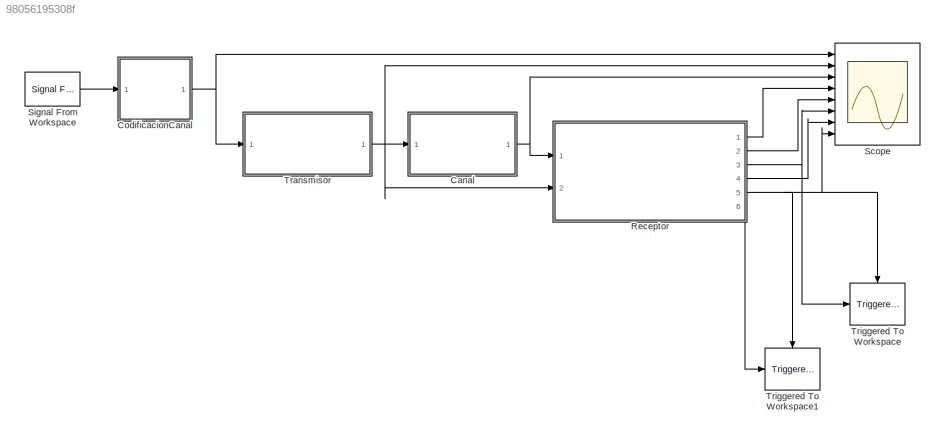
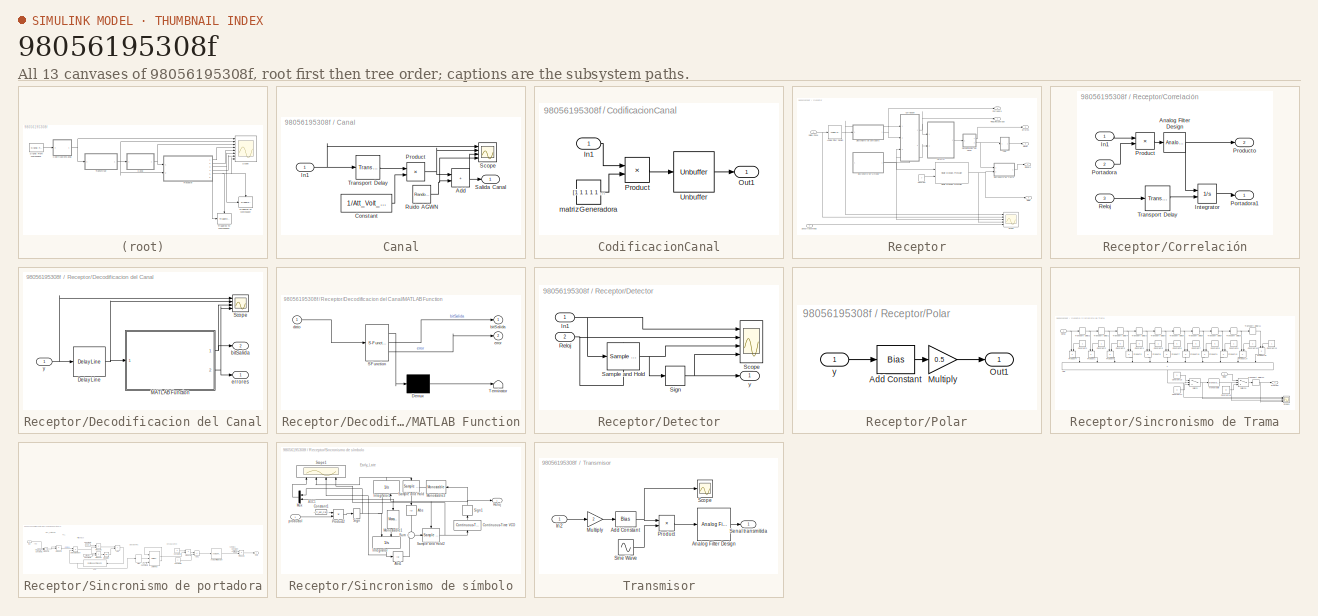
[diagram: thumbnail index - all 13 canvases of the model, root first then tree order]
MODEL slx_98056195308f
KIND model
CONFIG AbsTol = auto
CONFIG EnableMultiTasking = off
CONFIG FixedStep = auto
CONFIG MaxStep = 3.3333333333333335E-7
CONFIG MinStep = auto
CONFIG RelTol = 1e-3
CONFIG SampleTimeConstraint = Unconstrained
CONFIG SolverName = ode45
CONFIG StartTime = 0.0
CONFIG StopTime = 500*Tb
BLOCK [SubSystem] Canal
  Ports = [1, 1]
  RequestExecContextInheritance = off
BLOCK [Sum] Canal/Add
  IconShape = rectangular
  Ports = [2, 1]
BLOCK [Constant] Canal/Constant
  Value = 1/Att_Volt_Canal
BLOCK [Inport] Canal/In1
BLOCK [Product] Canal/Product
  Ports = [2, 1]
BLOCK [RandomNumber] Canal/Ruido AGWN
  SampleTime = 1/(2*AnchoDeBandaRuido)
  Variance = 0.9*varRuido
  VectorParams1D = off
BLOCK [Outport] Canal/Salida Canal
BLOCK [Scope] Canal/Scope
  Floating = off
  NumInputPorts = 4
  Ports = [4]
  ScopeSpecificationString = Simulink.scopes.TimeScopeBlockCfg('CurrentConfiguration', extmgr.ConfigurationSet(extmgr.Configuration('Core','General UI',true,'FigureColor',[1 1 1]),extmgr.Configuration('Core','Source UI',true),extmgr.Configuration('Sources','WiredSimulink',true,'DataLoggingVariableName','ScopeData2'),extmgr.Configuration('Visuals','Time Domain',true,'SerializedDisplays',{struct('MinYLimReal','-0.000000014','Ma...<+4249ch>
BLOCK [TransportDelay] Canal/Transport Delay
  DelayTime = Retraso_Canal
  Ports = [1, 1]
BLOCK [SubSystem] CodificacionCanal
  Ports = [1, 1]
  RequestExecContextInheritance = off
BLOCK [Inport] CodificacionCanal/In1
BLOCK [Outport] CodificacionCanal/Out1
BLOCK [Product] CodificacionCanal/Product
  Ports = [2, 1]
BLOCK [Unbuffer] CodificacionCanal/Unbuffer
  Ports = [1, 1]
BLOCK [Constant] CodificacionCanal/matrizGeneradora
  Value = [1 1 1 1 1 1 1]
BLOCK [SubSystem] Receptor
  Ports = [2, 6]
  RequestExecContextInheritance = off
BLOCK [Reference] Receptor/Analog Filter Design  REF=dsparch4/Analog
Filter Design
  Ports = [1, 1]
  SourceBlock = dsparch4/Analog\nFilter Design
  SourceProductBaseCode = DS
  SourceType = Analog Filter Design
BLOCK [Constant] Receptor/Constant
  Value = 7
BLOCK [SubSystem] Receptor/Correlación
  NameLocation = top
  PortSchema = {"entries":[{"content":{"sides":[{"content":{"connectorIds":["In1","In2","Out2","In3"]},"type":"ConnectorPlacement.EquallySpacedRectSide","uuid":"9c9ed9ca-e8ca-44c2-a659-85a067b2e2ab"},{"content":{"connectorIds":["Out1"],"side":"RIGHT"},"type":"ConnectorPlacement.EquallySpacedRectSide","uuid":"749548a8-d339-4a18-8c47-3529cad88115"},{"content":{"connectorIds":[],"side":"TOP"},"type":"ConnectorPlace...<+403ch>
  Ports = [3, 2]
  RequestExecContextInheritance = off
BLOCK [Reference] Receptor/Correlación/Analog Filter Design  REF=dsparch4/Analog
Filter Design
  Ports = [1, 1]
  SourceBlock = dsparch4/Analog\nFilter Design
  SourceProductBaseCode = DS
  SourceType = Analog Filter Design
BLOCK [Inport] Receptor/Correlación/In1
BLOCK [Integrator] Receptor/Correlación/Integrator
  ExternalReset = rising
  Ports = [2, 1]
BLOCK [Inport] Receptor/Correlación/Portadora
  Port = 2
BLOCK [Outport] Receptor/Correlación/Portadora1
BLOCK [Product] Receptor/Correlación/Product
  Ports = [2, 1]
BLOCK [Outport] Receptor/Correlación/Producto
  Port = 2
BLOCK [Inport] Receptor/Correlación/Reloj
  Port = 3
BLOCK [TransportDelay] Receptor/Correlación/Transport Delay
  DelayTime = 1e-9
  Ports = [1, 1]
BLOCK [SubSystem] Receptor/Decodificacion del Canal
  Ports = [1, 2]
  RequestExecContextInheritance = off
BLOCK [Reference] Receptor/Decodificacion del Canal/Delay Line  REF=dspbuff3/Delay Line
  Ports = [1, 1]
  SourceBlock = dspbuff3/Delay Line
  SourceProductBaseCode = DS
  SourceType = Delay Line
  UserDataPersistent = on
BLOCK [SubSystem] Receptor/Decodificacion del Canal/MATLAB Function
  ErrorFcn = Stateflow.Translate.translate
  PermitHierarchicalResolution = ExplicitOnly
  Ports = [1, 2]
  RequestExecContextInheritance = off
  SFBlockType = MATLAB Function
  TreatAsAtomicUnit = on
BLOCK [Demux] Receptor/Decodificacion del Canal/MATLAB Function/ Demux 
  Outputs = 1
  Ports = [1, 1]
BLOCK [S-Function] Receptor/Decodificacion del Canal/MATLAB Function/ SFunction 
  EnableBusSupport = on
  FunctionName = sf_sfun
  PortCounts = [1 3]
  Ports = [1, 3]
  SFcnIsStateOwnerBlock = off
  SFunctionDeploymentMode = off
  Tag = Stateflow S-Function 2
BLOCK [Terminator] Receptor/Decodificacion del Canal/MATLAB Function/ Terminator 
BLOCK [Outport] Receptor/Decodificacion del Canal/MATLAB Function/bitSalida
BLOCK [Inport] Receptor/Decodificacion del Canal/MATLAB Function/dato
BLOCK [Outport] Receptor/Decodificacion del Canal/MATLAB Function/error
  Port = 2
BLOCK [Scope] Receptor/Decodificacion del Canal/Scope
  Floating = off
  NumInputPorts = 4
  Ports = [4]
  ScopeSpecificationString = Simulink.scopes.TimeScopeBlockCfg('CurrentConfiguration', extmgr.ConfigurationSet(extmgr.Configuration('Core','General UI',true,'FigureColor',[1 1 1]),extmgr.Configuration('Core','Source UI',true),extmgr.Configuration('Sources','WiredSimulink',true,'DataLoggingVariableName','ScopeData1'),extmgr.Configuration('Visuals','Time Domain',true,'SerializedDisplays',{struct('MinYLimReal','-1.25','MaxYLimRe...<+5450ch>
BLOCK [Outport] Receptor/Decodificacion del Canal/bitSalida
  Port = 2
BLOCK [Outport] Receptor/Decodificacion del Canal/errores
BLOCK [Inport] Receptor/Decodificacion del Canal/y
BLOCK [SubSystem] Receptor/Detector
  Ports = [2, 1]
  RequestExecContextInheritance = off
BLOCK [Inport] Receptor/Detector/In1
BLOCK [Inport] Receptor/Detector/Reloj
  Port = 2
BLOCK [Reference] Receptor/Detector/Sample and Hold  REF=dspsigops/Sample
and Hold
  NameLocation = top
  Ports = [1, 1, 0, 1]
  SourceBlock = dspsigops/Sample\nand Hold
  SourceProductBaseCode = DS
  SourceType = Sample and Hold
BLOCK [Scope] Receptor/Detector/Scope
  Floating = off
  NumInputPorts = 4
  Ports = [4]
  ScopeSpecificationString = Simulink.scopes.TimeScopeBlockCfg('CurrentConfiguration', extmgr.ConfigurationSet(extmgr.Configuration('Core','General UI',true,'FigureColor',[0.831372549019608 0.815686274509804 0.784313725490196]),extmgr.Configuration('Core','Source UI',true),extmgr.Configuration('Sources','WiredSimulink',true,'DataLoggingVariableName','ScopeData5'),extmgr.Configuration('Visuals','Time Domain',true,'SerializedDi...<+4211ch>
BLOCK [Signum] Receptor/Detector/Sign
BLOCK [Outport] Receptor/Detector/y
BLOCK [Outport] Receptor/Disparo
  Port = 4
BLOCK [Outport] Receptor/Errores
  Port = 6
BLOCK [SubSystem] Receptor/Polar
  Ports = [1, 1]
  RequestExecContextInheritance = off
BLOCK [Bias] Receptor/Polar/Add Constant
  Bias = 1
  SaturateOnIntegerOverflow = off
BLOCK [Gain] Receptor/Polar/Multiply
  Gain = 0.5
BLOCK [Outport] Receptor/Polar/Out1
BLOCK [Inport] Receptor/Polar/y
BLOCK [Outport] Receptor/Portadora
BLOCK [Outport] Receptor/Reloj
  Port = 5
BLOCK [Outport] Receptor/Reloj_Recuperado
  Port = 2
BLOCK [Inport] Receptor/Salida Canal
BLOCK [Scope] Receptor/Scope
  Floating = off
  NumInputPorts = 5
  Ports = [5]
  ScopeSpecificationString = Simulink.scopes.TimeScopeBlockCfg('CurrentConfiguration', extmgr.ConfigurationSet(extmgr.Configuration('Core','General UI',true,'FigureColor',[1 1 1]),extmgr.Configuration('Core','Source UI',true),extmgr.Configuration('Sources','WiredSimulink',true,'DataLoggingVariableName','ScopeData1'),extmgr.Configuration('Visuals','Time Domain',true,'SerializedDisplays',{struct('MinYLimReal','-0.00000000003','...<+7648ch>
BLOCK [Inport] Receptor/Senal transmitida
  Port = 2
BLOCK [Outport] Receptor/Señal
  Port = 3
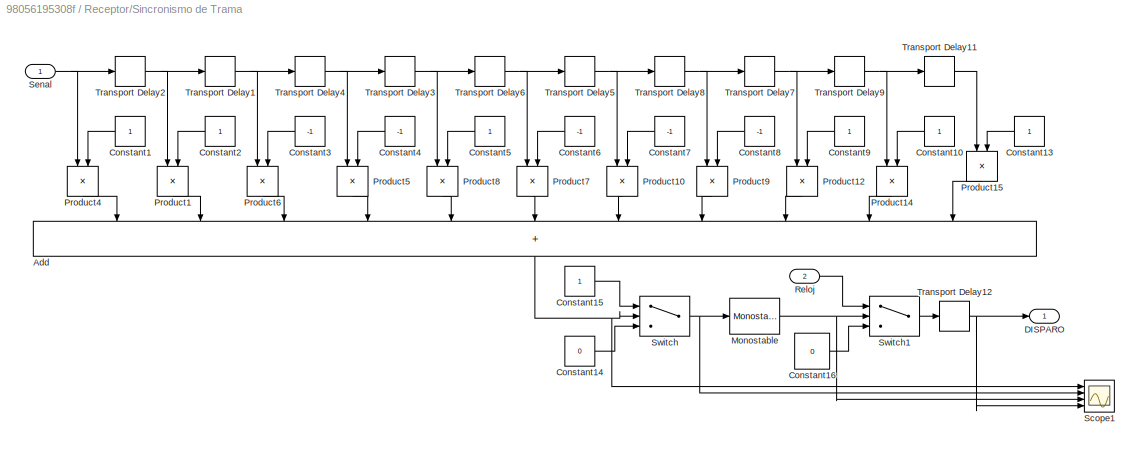
BLOCK [SubSystem] Receptor/Sincronismo de Trama
  Ports = [2, 1]
  RequestExecContextInheritance = off
BLOCK [Sum] Receptor/Sincronismo de Trama/Add
  IconShape = rectangular
  Inputs = +++++++++++
  NameLocation = left
  Ports = [11, 1]
BLOCK [Constant] Receptor/Sincronismo de Trama/Constant1
BLOCK [Constant] Receptor/Sincronismo de Trama/Constant10
BLOCK [Constant] Receptor/Sincronismo de Trama/Constant13
BLOCK [Constant] Receptor/Sincronismo de Trama/Constant14
  Value = 0
BLOCK [Constant] Receptor/Sincronismo de Trama/Constant15
BLOCK [Constant] Receptor/Sincronismo de Trama/Constant16
  Value = 0
BLOCK [Constant] Receptor/Sincronismo de Trama/Constant2
BLOCK [Constant] Receptor/Sincronismo de Trama/Constant3
  Value = -1
BLOCK [Constant] Receptor/Sincronismo de Trama/Constant4
  Value = -1
BLOCK [Constant] Receptor/Sincronismo de Trama/Constant5
BLOCK [Constant] Receptor/Sincronismo de Trama/Constant6
  Value = -1
BLOCK [Constant] Receptor/Sincronismo de Trama/Constant7
  Value = -1
BLOCK [Constant] Receptor/Sincronismo de Trama/Constant8
  Value = -1
BLOCK [Constant] Receptor/Sincronismo de Trama/Constant9
BLOCK [Outport] Receptor/Sincronismo de Trama/DISPARO 
  VectorParamsAs1DForOutWhenUnconnected = off
BLOCK [Reference] Receptor/Sincronismo de Trama/Monostable  REF=spsMonostableLib/Monostable
  Ports = [1, 1]
  SourceBlock = spsMonostableLib/Monostable
  SourceProductBaseCode = PS
  SourceType = Monostable
BLOCK [Product] Receptor/Sincronismo de Trama/Product1
  NameLocation = left
  Ports = [2, 1]
BLOCK [Product] Receptor/Sincronismo de Trama/Product10
  NameLocation = left
  Ports = [2, 1]
BLOCK [Product] Receptor/Sincronismo de Trama/Product12
  NameLocation = left
  Ports = [2, 1]
BLOCK [Product] Receptor/Sincronismo de Trama/Product14
  NameLocation = left
  Ports = [2, 1]
BLOCK [Product] Receptor/Sincronismo de Trama/Product15
  NameLocation = left
  Ports = [2, 1]
BLOCK [Product] Receptor/Sincronismo de Trama/Product4
  NameLocation = left
  Ports = [2, 1]
BLOCK [Product] Receptor/Sincronismo de Trama/Product5
  NameLocation = left
  Ports = [2, 1]
BLOCK [Product] Receptor/Sincronismo de Trama/Product6
  NameLocation = left
  Ports = [2, 1]
BLOCK [Product] Receptor/Sincronismo de Trama/Product7
  NameLocation = left
  Ports = [2, 1]
BLOCK [Product] Receptor/Sincronismo de Trama/Product8
  NameLocation = left
  Ports = [2, 1]
BLOCK [Product] Receptor/Sincronismo de Trama/Product9
  NameLocation = left
  Ports = [2, 1]
BLOCK [Inport] Receptor/Sincronismo de Trama/Reloj
  Port = 2
BLOCK [Scope] Receptor/Sincronismo de Trama/Scope1
  Floating = off
  NumInputPorts = 4
  Ports = [4]
  ScopeSpecificationString = Simulink.scopes.TimeScopeBlockCfg('CurrentConfiguration', extmgr.ConfigurationSet(extmgr.Configuration('Core','General UI',true),extmgr.Configuration('Core','Source UI',true),extmgr.Configuration('Sources','WiredSimulink',true,'DataLoggingVariableName','ScopeData1'),extmgr.Configuration('Visuals','Time Domain',true,'SerializedDisplays',{struct('MinYLimReal','-6.5','MaxYLimReal','8.5','YLabelReal',...<+3439ch>
BLOCK [Inport] Receptor/Sincronismo de Trama/Senal
BLOCK [Switch] Receptor/Sincronismo de Trama/Switch
  InputSameDT = off
  SaturateOnIntegerOverflow = off
  Threshold = 11
BLOCK [Switch] Receptor/Sincronismo de Trama/Switch1
  Criteria = u2 > Threshold
  InputSameDT = off
  SaturateOnIntegerOverflow = off
BLOCK [TransportDelay] Receptor/Sincronismo de Trama/Transport Delay1
  DelayTime = 7*Tb
  Ports = [1, 1]
BLOCK [TransportDelay] Receptor/Sincronismo de Trama/Transport Delay11
  DelayTime = 7*Tb
  Ports = [1, 1]
BLOCK [TransportDelay] Receptor/Sincronismo de Trama/Transport Delay12
  Commented = through
  DelayTime = Tb
  Ports = [1, 1]
BLOCK [TransportDelay] Receptor/Sincronismo de Trama/Transport Delay2
  DelayTime = 7*Tb
  Ports = [1, 1]
BLOCK [TransportDelay] Receptor/Sincronismo de Trama/Transport Delay3
  DelayTime = 7*Tb
  Ports = [1, 1]
BLOCK [TransportDelay] Receptor/Sincronismo de Trama/Transport Delay4
  DelayTime = 7*Tb
  Ports = [1, 1]
BLOCK [TransportDelay] Receptor/Sincronismo de Trama/Transport Delay5
  DelayTime = 7*Tb
  Ports = [1, 1]
BLOCK [TransportDelay] Receptor/Sincronismo de Trama/Transport Delay6
  DelayTime = 7*Tb
  Ports = [1, 1]
BLOCK [TransportDelay] Receptor/Sincronismo de Trama/Transport Delay7
  DelayTime = 7*Tb
  Ports = [1, 1]
BLOCK [TransportDelay] Receptor/Sincronismo de Trama/Transport Delay8
  DelayTime = 7*Tb
  Ports = [1, 1]
BLOCK [TransportDelay] Receptor/Sincronismo de Trama/Transport Delay9
  DelayTime = 7*Tb
  Ports = [1, 1]
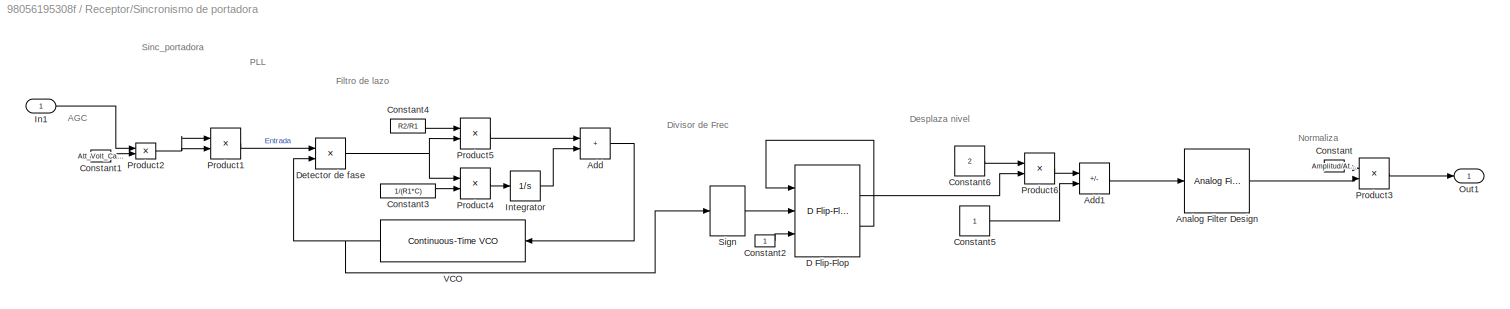
BLOCK [SubSystem] Receptor/Sincronismo de portadora
  Ports = [1, 1]
  RequestExecContextInheritance = off
BLOCK [Reference] Receptor/Sincronismo de portadora/ VCO  REF=commsynccomp2/Continuous-Time
VCO
  NameLocation = top
  Ports = [1, 1]
  SourceBlock = commsynccomp2/Continuous-Time\nVCO
  SourceProductBaseCode = CM
  SourceType = Continuous-Time VCO
BLOCK [Sum] Receptor/Sincronismo de portadora/Add
  IconShape = rectangular
  Ports = [2, 1]
BLOCK [Sum] Receptor/Sincronismo de portadora/Add1
  IconShape = rectangular
  Inputs = +-
  Ports = [2, 1]
BLOCK [Reference] Receptor/Sincronismo de portadora/Analog Filter Design  REF=dsparch4/Analog
Filter Design
  Ports = [1, 1]
  SourceBlock = dsparch4/Analog\nFilter Design
  SourceProductBaseCode = DS
  SourceType = Analog Filter Design
BLOCK [Constant] Receptor/Sincronismo de portadora/Constant
  Value = Amplitud/Att_Volt_Canal
BLOCK [Constant] Receptor/Sincronismo de portadora/Constant1
  Value = Att_Volt_Canal/Amplitud
BLOCK [Constant] Receptor/Sincronismo de portadora/Constant2
BLOCK [Constant] Receptor/Sincronismo de portadora/Constant3
  Value = 1/(R1*C)
BLOCK [Constant] Receptor/Sincronismo de portadora/Constant4
  Value = R2/R1
BLOCK [Constant] Receptor/Sincronismo de portadora/Constant5
BLOCK [Constant] Receptor/Sincronismo de portadora/Constant6
  Value = 2
BLOCK [Reference] Receptor/Sincronismo de portadora/D Flip-Flop  REF=simulink_extras/Flip Flops/D Flip-Flop
  Ports = [3, 2]
  SourceBlock = simulink_extras/Flip Flops/D Flip-Flop
  SourceProductBaseCode = SL
  SourceType = DFlipFlop
BLOCK [Product] Receptor/Sincronismo de portadora/Detector de fase
  Ports = [2, 1]
BLOCK [Inport] Receptor/Sincronismo de portadora/In1
BLOCK [Integrator] Receptor/Sincronismo de portadora/Integrator
  Ports = [1, 1]
BLOCK [Outport] Receptor/Sincronismo de portadora/Out1
BLOCK [Product] Receptor/Sincronismo de portadora/Product1
  Ports = [2, 1]
BLOCK [Product] Receptor/Sincronismo de portadora/Product2
  Ports = [2, 1]
BLOCK [Product] Receptor/Sincronismo de portadora/Product3
  Ports = [2, 1]
BLOCK [Product] Receptor/Sincronismo de portadora/Product4
  Ports = [2, 1]
BLOCK [Product] Receptor/Sincronismo de portadora/Product5
  Ports = [2, 1]
BLOCK [Product] Receptor/Sincronismo de portadora/Product6
  Ports = [2, 1]
BLOCK [Signum] Receptor/Sincronismo de portadora/Sign
BLOCK [SubSystem] Receptor/Sincronismo de símbolo
  PortSchema = {"entries":[{"content":{"sides":[{"content":{"connectorIds":[]},"type":"ConnectorPlacement.EquallySpacedRectSide","uuid":"93994b0c-b2cb-4331-9695-4cda4bbb6019"},{"content":{"connectorIds":["In1","Out1"],"side":"RIGHT"},"type":"ConnectorPlacement.EquallySpacedRectSide","uuid":"b8064540-0ede-4985-840d-1e59709fa35b"},{"content":{"connectorIds":[],"side":"TOP"},"type":"ConnectorPlacement.EquallySpaced...<+241ch>
  Ports = [1, 1]
  RequestExecContextInheritance = off
BLOCK [Abs] Receptor/Sincronismo de símbolo/Abs
  NameLocation = right
  SaturateOnIntegerOverflow = off
BLOCK [Abs] Receptor/Sincronismo de símbolo/Abs1
  SaturateOnIntegerOverflow = off
BLOCK [Constant] Receptor/Sincronismo de símbolo/Constant1
  Value = Att_pot_Canal/(Amplitud^2)
BLOCK [Reference] Receptor/Sincronismo de símbolo/Continuous-Time VCO  REF=commsynccomp2/Continuous-Time
VCO
  NameLocation = left
  Ports = [1, 1]
  SourceBlock = commsynccomp2/Continuous-Time\nVCO
  SourceProductBaseCode = CM
  SourceType = Continuous-Time VCO
BLOCK [Integrator] Receptor/Sincronismo de símbolo/Integrator
  ExternalReset = falling
  LowerSaturationLimit = -0.7e-4
  NameLocation = left
  Ports = [2, 1]
  UpperSaturationLimit = 0.7e-4
BLOCK [Integrator] Receptor/Sincronismo de símbolo/Integrator1
  ExternalReset = rising
  LowerSaturationLimit = -0.7e-4
  NameLocation = right
  Ports = [2, 1]
  UpperSaturationLimit = 0.7e-4
BLOCK [Reference] Receptor/Sincronismo de símbolo/Monostable1  REF=powerlib_extras/Control 
Blocks/Monostable
  NameLocation = left
  Ports = [1, 1]
  SourceBlock = powerlib_extras/Control \nBlocks/Monostable
  SourceProductBaseCode = PS
  SourceType = Monostable Flip-Flop
BLOCK [Reference] Receptor/Sincronismo de símbolo/Monostable3  REF=powerlib_extras/Control 
Blocks/Monostable
  Ports = [1, 1]
  SourceBlock = powerlib_extras/Control \nBlocks/Monostable
  SourceProductBaseCode = PS
  SourceType = Monostable Flip-Flop
BLOCK [Mux] Receptor/Sincronismo de símbolo/Mux
  DisplayOption = bar
  Inputs = 2
  Ports = [2, 1]
BLOCK [Product] Receptor/Sincronismo de símbolo/Product2
  Ports = [2, 1]
BLOCK [Outport] Receptor/Sincronismo de símbolo/Reloj
BLOCK [Reference] Receptor/Sincronismo de símbolo/Sample and Hold  REF=dspsigops/Sample
and Hold
  NameLocation = left
  Ports = [1, 1, 0, 1]
  SourceBlock = dspsigops/Sample\nand Hold
  SourceProductBaseCode = DS
  SourceType = Sample and Hold
BLOCK [Reference] Receptor/Sincronismo de símbolo/Sample and Hold2  REF=dspsigops/Sample
and Hold
  Ports = [1, 1, 0, 1]
  SourceBlock = dspsigops/Sample\nand Hold
  SourceProductBaseCode = DS
  SourceType = Sample and Hold
BLOCK [Scope] Receptor/Sincronismo de símbolo/Scope1
  Floating = off
  NameLocation = right
  NumInputPorts = 4
  Ports = [4]
  ScopeSpecificationString = Simulink.scopes.TimeScopeBlockCfg('CurrentConfiguration', extmgr.ConfigurationSet(extmgr.Configuration('Core','General UI',true,'FigureColor',[0.831372549019608 0.815686274509804 0.784313725490196]),extmgr.Configuration('Core','Source UI',true),extmgr.Configuration('Sources','WiredSimulink',true,'DataLoggingVariableName','ScopeData1'),extmgr.Configuration('Visuals','Time Domain',true,'SerializedDi...<+4389ch>
BLOCK [Signum] Receptor/Sincronismo de símbolo/Sign
BLOCK [Signum] Receptor/Sincronismo de símbolo/Sign1
  NameLocation = right
BLOCK [Sum] Receptor/Sincronismo de símbolo/Sum
  Inputs = +-
  Ports = [2, 1]
BLOCK [Inport] Receptor/Sincronismo de símbolo/productol
BLOCK [Reference] Receptor/Single Modulus Prescaler  REF=msbPllFoundation/Single Modulus Prescaler
  Ports = [2, 1]
  SourceBlock = msbPllFoundation/Single Modulus Prescaler
  SourceProductBaseCode = AM
  SourceType = SingleModulusPrescaler
BLOCK [Scope] Scope
  Floating = off
  NumInputPorts = 8
  Ports = [8]
  ScopeSpecificationString = Simulink.scopes.TimeScopeBlockCfg('CurrentConfiguration', extmgr.ConfigurationSet(extmgr.Configuration('Core','General UI',true,'FigureColor',[1 1 1]),extmgr.Configuration('Core','Source UI',true),extmgr.Configuration('Sources','WiredSimulink',true,'DataLoggingVariableName','ScopeData1'),extmgr.Configuration('Visuals','Time Domain',true,'SerializedDisplays',{struct('MinYLimReal','-0.125','MaxYLimR...<+7705ch>
BLOCK [Reference] Signal From Workspace  REF=dspsrcs4/Signal From
Workspace
  Ports = [0, 1]
  SourceBlock = dspsrcs4/Signal From\nWorkspace
  SourceProductBaseCode = DS
  SourceType = Signal From Workspace
BLOCK [SubSystem] Transmisor
  Ports = [1, 1]
  RequestExecContextInheritance = off
BLOCK [Bias] Transmisor/Add Constant
  Bias = -1
  SaturateOnIntegerOverflow = off
BLOCK [Reference] Transmisor/Analog Filter Design  REF=dsparch4/Analog
Filter Design
  Ports = [1, 1]
  SourceBlock = dsparch4/Analog\nFilter Design
  SourceProductBaseCode = DS
  SourceType = Analog Filter Design
BLOCK [Inport] Transmisor/In2
BLOCK [Gain] Transmisor/Multiply
  Gain = 2
BLOCK [Product] Transmisor/Product
  Ports = [2, 1]
BLOCK [Scope] Transmisor/Scope
  Floating = off
  NumInputPorts = 1
  Ports = [1]
  ScopeSpecificationString = Simulink.scopes.TimeScopeBlockCfg('CurrentConfiguration', extmgr.ConfigurationSet(extmgr.Configuration('Core','General UI',true),extmgr.Configuration('Core','Source UI',true),extmgr.Configuration('Sources','WiredSimulink',true),extmgr.Configuration('Visuals','Time Domain',true,'SerializedDisplays',{struct('MinYLimReal','-1.08253','MaxYLimReal','1.08253','YLabelReal','','MinYLimMag','0.00000','MaxY...<+2080ch>
BLOCK [Outport] Transmisor/Senal transmitida
BLOCK [Sin] Transmisor/Sine Wave
  Amplitude = AmplitudPortadora
  Frequency = 2*pi*Frec_port
  Ports = [0, 1]
  SampleTime = 0
  Samples = 5
BLOCK [Reference] Triggered To Workspace  REF=dspsnks4/Triggered
To Workspace
  Ports = [1, 0, 0, 1]
  SourceBlock = dspsnks4/Triggered\nTo Workspace
  SourceProductBaseCode = DS
  SourceType = Triggered To Workspace
  UserDataPersistent = on
BLOCK [Reference] Triggered To Workspace1  REF=dspsnks4/Triggered
To Workspace
  Ports = [1, 0, 0, 1]
  SourceBlock = dspsnks4/Triggered\nTo Workspace
  SourceProductBaseCode = DS
  SourceType = Triggered To Workspace
  UserDataPersistent = on
ANNOTATION Receptor/Sincronismo de portadora: AGC
ANNOTATION Receptor/Sincronismo de portadora: Desplaza nivel
ANNOTATION Receptor/Sincronismo de portadora: Divisor de Frec
ANNOTATION Receptor/Sincronismo de portadora: Filtro de lazo
ANNOTATION Receptor/Sincronismo de portadora: Normaliza
ANNOTATION Receptor/Sincronismo de portadora: PLL
ANNOTATION Receptor/Sincronismo de portadora: Sinc_portadora
ANNOTATION Receptor/Sincronismo de símbolo: AGC1
ANNOTATION Receptor/Sincronismo de símbolo: Early_Late
NET Canal/Add:1 -> Canal/Salida Canal:1, Canal/Scope:3
LINE Canal/Constant:1 -> Canal/Product:2
NET Canal/In1:1 -> Canal/Scope:1, Canal/Transport Delay:1
NET Canal/Product:1 -> Canal/Add:1, Canal/Scope:2
NET Canal/Ruido AGWN:1 -> Canal/Add:2, Canal/Scope:4
LINE Canal/Transport Delay:1 -> Canal/Product:1
NET Canal:1 -> Receptor:1, Scope:3
LINE CodificacionCanal/In1:1 -> CodificacionCanal/Product:1
LINE CodificacionCanal/Product:1 -> CodificacionCanal/Unbuffer:1
LINE CodificacionCanal/Unbuffer:1 -> CodificacionCanal/Out1:1
LINE CodificacionCanal/matrizGeneradora:1 -> CodificacionCanal/Product:2
NET CodificacionCanal:1 -> Scope:1, Transmisor:1
NET Receptor/Analog Filter Design:1 -> Receptor/Correlación:1, Receptor/Scope:1, Receptor/Sincronismo de portadora:1
LINE Receptor/Constant:1 -> Receptor/Single Modulus Prescaler:2
NET Receptor/Correlación/Analog Filter Design:1 -> Receptor/Correlación/Integrator:1, Receptor/Correlación/Producto:1
LINE Receptor/Correlación/In1:1 -> Receptor/Correlación/Product:1
LINE Receptor/Correlación/Integrator:1 -> Receptor/Correlación/Portadora1:1
LINE Receptor/Correlación/Portadora:1 -> Receptor/Correlación/Product:2
LINE Receptor/Correlación/Product:1 -> Receptor/Correlación/Analog Filter Design:1
LINE Receptor/Correlación/Reloj:1 -> Receptor/Correlación/Transport Delay:1
LINE Receptor/Correlación/Transport Delay:1 -> Receptor/Correlación/Integrator:2
NET Receptor/Correlación:1 -> Receptor/Detector:1, Receptor/Reloj_Recuperado:1
LINE Receptor/Correlación:2 -> Receptor/Sincronismo de símbolo:1
NET Receptor/Decodificacion del Canal/Delay Line:1 -> Receptor/Decodificacion del Canal/MATLAB Function:1, Receptor/Decodificacion del Canal/Scope:2
NET Receptor/Decodificacion del Canal/MATLAB Function:1 -> Receptor/Decodificacion del Canal/Scope:3, Receptor/Decodificacion del Canal/bitSalida:1
NET Receptor/Decodificacion del Canal/MATLAB Function:2 -> Receptor/Decodificacion del Canal/Scope:4, Receptor/Decodificacion del Canal/errores:1
NET Receptor/Decodificacion del Canal/y:1 -> Receptor/Decodificacion del Canal/Delay Line:1, Receptor/Decodificacion del Canal/Scope:1
LINE Receptor/Decodificacion del Canal:1 -> Receptor/Errores:1
NET Receptor/Decodificacion del Canal:2 -> Receptor/Polar:1, Receptor/Sincronismo de Trama:1
NET Receptor/Detector/In1:1 -> Receptor/Detector/Sample and Hold:1, Receptor/Detector/Scope:1
NET Receptor/Detector/Reloj:1 -> Receptor/Detector/Sample and Hold:trigger, Receptor/Detector/Scope:2
NET Receptor/Detector/Sample and Hold:1 -> Receptor/Detector/Scope:3, Receptor/Detector/Sign:1
NET Receptor/Detector/Sign:1 -> Receptor/Detector/Scope:4, Receptor/Detector/y:1
LINE Receptor/Detector:1 -> Receptor/Decodificacion del Canal:1
LINE Receptor/Polar/Add Constant:1 -> Receptor/Polar/Multiply:1
LINE Receptor/Polar/Multiply:1 -> Receptor/Polar/Out1:1
LINE Receptor/Polar/y:1 -> Receptor/Polar/Add Constant:1
LINE Receptor/Polar:1 -> Receptor/Señal:1
NET Receptor/Salida Canal:1 -> Receptor/Analog Filter Design:1, Receptor/Scope:2
LINE Receptor/Senal transmitida:1 -> Receptor/Scope:5
NET Receptor/Sincronismo de Trama/Add:1 -> Receptor/Sincronismo de Trama/Scope1:1, Receptor/Sincronismo de Trama/Switch:2
LINE Receptor/Sincronismo de Trama/Constant10:1 -> Receptor/Sincronismo de Trama/Product14:2
LINE Receptor/Sincronismo de Trama/Constant13:1 -> Receptor/Sincronismo de Trama/Product15:2
LINE Receptor/Sincronismo de Trama/Constant14:1 -> Receptor/Sincronismo de Trama/Switch:3
LINE Receptor/Sincronismo de Trama/Constant15:1 -> Receptor/Sincronismo de Trama/Switch:1
LINE Receptor/Sincronismo de Trama/Constant16:1 -> Receptor/Sincronismo de Trama/Switch1:3
LINE Receptor/Sincronismo de Trama/Constant1:1 -> Receptor/Sincronismo de Trama/Product4:2
LINE Receptor/Sincronismo de Trama/Constant2:1 -> Receptor/Sincronismo de Trama/Product1:2
LINE Receptor/Sincronismo de Trama/Constant3:1 -> Receptor/Sincronismo de Trama/Product6:2
LINE Receptor/Sincronismo de Trama/Constant4:1 -> Receptor/Sincronismo de Trama/Product5:2
LINE Receptor/Sincronismo de Trama/Constant5:1 -> Receptor/Sincronismo de Trama/Product8:2
LINE Receptor/Sincronismo de Trama/Constant6:1 -> Receptor/Sincronismo de Trama/Product7:2
LINE Receptor/Sincronismo de Trama/Constant7:1 -> Receptor/Sincronismo de Trama/Product10:2
LINE Receptor/Sincronismo de Trama/Constant8:1 -> Receptor/Sincronismo de Trama/Product9:2
LINE Receptor/Sincronismo de Trama/Constant9:1 -> Receptor/Sincronismo de Trama/Product12:2
NET Receptor/Sincronismo de Trama/Monostable:1 -> Receptor/Sincronismo de Trama/Scope1:3, Receptor/Sincronismo de Trama/Switch1:2
LINE Receptor/Sincronismo de Trama/Product10:1 -> Receptor/Sincronismo de Trama/Add:7
LINE Receptor/Sincronismo de Trama/Product12:1 -> Receptor/Sincronismo de Trama/Add:9
LINE Receptor/Sincronismo de Trama/Product14:1 -> Receptor/Sincronismo de Trama/Add:10
LINE Receptor/Sincronismo de Trama/Product15:1 -> Receptor/Sincronismo de Trama/Add:11
LINE Receptor/Sincronismo de Trama/Product1:1 -> Receptor/Sincronismo de Trama/Add:2
LINE Receptor/Sincronismo de Trama/Product4:1 -> Receptor/Sincronismo de Trama/Add:1
LINE Receptor/Sincronismo de Trama/Product5:1 -> Receptor/Sincronismo de Trama/Add:4
LINE Receptor/Sincronismo de Trama/Product6:1 -> Receptor/Sincronismo de Trama/Add:3
LINE Receptor/Sincronismo de Trama/Product7:1 -> Receptor/Sincronismo de Trama/Add:6
LINE Receptor/Sincronismo de Trama/Product8:1 -> Receptor/Sincronismo de Trama/Add:5
LINE Receptor/Sincronismo de Trama/Product9:1 -> Receptor/Sincronismo de Trama/Add:8
LINE Receptor/Sincronismo de Trama/Reloj:1 -> Receptor/Sincronismo de Trama/Switch1:1
NET Receptor/Sincronismo de Trama/Senal:1 -> Receptor/Sincronismo de Trama/Product4:1, Receptor/Sincronismo de Trama/Transport Delay2:1
LINE Receptor/Sincronismo de Trama/Switch1:1 -> Receptor/Sincronismo de Trama/Transport Delay12:1
NET Receptor/Sincronismo de Trama/Switch:1 -> Receptor/Sincronismo de Trama/Monostable:1, Receptor/Sincronismo de Trama/Scope1:2
LINE Receptor/Sincronismo de Trama/Transport Delay11:1 -> Receptor/Sincronismo de Trama/Product15:1
NET Receptor/Sincronismo de Trama/Transport Delay12:1 -> Receptor/Sincronismo de Trama/DISPARO :1, Receptor/Sincronismo de Trama/Scope1:4
NET Receptor/Sincronismo de Trama/Transport Delay1:1 -> Receptor/Sincronismo de Trama/Product6:1, Receptor/Sincronismo de Trama/Transport Delay4:1
NET Receptor/Sincronismo de Trama/Transport Delay2:1 -> Receptor/Sincronismo de Trama/Product1:1, Receptor/Sincronismo de Trama/Transport Delay1:1
NET Receptor/Sincronismo de Trama/Transport Delay3:1 -> Receptor/Sincronismo de Trama/Product8:1, Receptor/Sincronismo de Trama/Transport Delay6:1
NET Receptor/Sincronismo de Trama/Transport Delay4:1 -> Receptor/Sincronismo de Trama/Product5:1, Receptor/Sincronismo de Trama/Transport Delay3:1
NET Receptor/Sincronismo de Trama/Transport Delay5:1 -> Receptor/Sincronismo de Trama/Product10:1, Receptor/Sincronismo de Trama/Transport Delay8:1
NET Receptor/Sincronismo de Trama/Transport Delay6:1 -> Receptor/Sincronismo de Trama/Product7:1, Receptor/Sincronismo de Trama/Transport Delay5:1
NET Receptor/Sincronismo de Trama/Transport Delay7:1 -> Receptor/Sincronismo de Trama/Product12:1, Receptor/Sincronismo de Trama/Transport Delay9:1
NET Receptor/Sincronismo de Trama/Transport Delay8:1 -> Receptor/Sincronismo de Trama/Product9:1, Receptor/Sincronismo de Trama/Transport Delay7:1
NET Receptor/Sincronismo de Trama/Transport Delay9:1 -> Receptor/Sincronismo de Trama/Product14:1, Receptor/Sincronismo de Trama/Transport Delay11:1
LINE Receptor/Sincronismo de Trama:1 -> Receptor/Disparo:1
NET Receptor/Sincronismo de portadora/ VCO:1 -> Receptor/Sincronismo de portadora/Detector de fase:2, Receptor/Sincronismo de portadora/Sign:1
LINE Receptor/Sincronismo de portadora/Add1:1 -> Receptor/Sincronismo de portadora/Analog Filter Design:1
LINE Receptor/Sincronismo de portadora/Add:1 -> Receptor/Sincronismo de portadora/ VCO:1
LINE Receptor/Sincronismo de portadora/Analog Filter Design:1 -> Receptor/Sincronismo de portadora/Product3:2
LINE Receptor/Sincronismo de portadora/Constant1:1 -> Receptor/Sincronismo de portadora/Product2:2
LINE Receptor/Sincronismo de portadora/Constant2:1 -> Receptor/Sincronismo de portadora/D Flip-Flop:3
LINE Receptor/Sincronismo de portadora/Constant3:1 -> Receptor/Sincronismo de portadora/Product4:2
LINE Receptor/Sincronismo de portadora/Constant4:1 -> Receptor/Sincronismo de portadora/Product5:1
LINE Receptor/Sincronismo de portadora/Constant5:1 -> Receptor/Sincronismo de portadora/Add1:2
LINE Receptor/Sincronismo de portadora/Constant6:1 -> Receptor/Sincronismo de portadora/Product6:1
LINE Receptor/Sincronismo de portadora/Constant:1 -> Receptor/Sincronismo de portadora/Product3:1
LINE Receptor/Sincronismo de portadora/D Flip-Flop:1 -> Receptor/Sincronismo de portadora/Product6:2
LINE Receptor/Sincronismo de portadora/D Flip-Flop:2 -> Receptor/Sincronismo de portadora/D Flip-Flop:1
NET Receptor/Sincronismo de portadora/Detector de fase:1 -> Receptor/Sincronismo de portadora/Product4:1, Receptor/Sincronismo de portadora/Product5:2
LINE Receptor/Sincronismo de portadora/In1:1 -> Receptor/Sincronismo de portadora/Product2:1
LINE Receptor/Sincronismo de portadora/Integrator:1 -> Receptor/Sincronismo de portadora/Add:2
LINE Receptor/Sincronismo de portadora/Product1:1 -> Receptor/Sincronismo de portadora/Detector de fase:1
NET Receptor/Sincronismo de portadora/Product2:1 -> Receptor/Sincronismo de portadora/Product1:1, Receptor/Sincronismo de portadora/Product1:2
LINE Receptor/Sincronismo de portadora/Product3:1 -> Receptor/Sincronismo de portadora/Out1:1
LINE Receptor/Sincronismo de portadora/Product4:1 -> Receptor/Sincronismo de portadora/Integrator:1
LINE Receptor/Sincronismo de portadora/Product5:1 -> Receptor/Sincronismo de portadora/Add:1
LINE Receptor/Sincronismo de portadora/Product6:1 -> Receptor/Sincronismo de portadora/Add1:1
LINE Receptor/Sincronismo de portadora/Sign:1 -> Receptor/Sincronismo de portadora/D Flip-Flop:2
NET Receptor/Sincronismo de portadora:1 -> Receptor/Correlación:2, Receptor/Portadora:1
LINE Receptor/Sincronismo de símbolo/Abs1:1 -> Receptor/Sincronismo de símbolo/Sum:2
LINE Receptor/Sincronismo de símbolo/Abs:1 -> Receptor/Sincronismo de símbolo/Sum:1
LINE Receptor/Sincronismo de símbolo/Constant1:1 -> Receptor/Sincronismo de símbolo/Product2:1
LINE Receptor/Sincronismo de símbolo/Continuous-Time VCO:1 -> Receptor/Sincronismo de símbolo/Sign1:1
NET Receptor/Sincronismo de símbolo/Integrator1:1 -> Receptor/Sincronismo de símbolo/Sample and Hold:1, Receptor/Sincronismo de símbolo/Scope1:2
NET Receptor/Sincronismo de símbolo/Integrator:1 -> Receptor/Sincronismo de símbolo/Abs1:1, Receptor/Sincronismo de símbolo/Scope1:3
LINE Receptor/Sincronismo de símbolo/Monostable1:1 -> Receptor/Sincronismo de símbolo/Integrator:2
LINE Receptor/Sincronismo de símbolo/Monostable3:1 -> Receptor/Sincronismo de símbolo/Sample and Hold:trigger
LINE Receptor/Sincronismo de símbolo/Mux:1 -> Receptor/Sincronismo de símbolo/Scope1:1
LINE Receptor/Sincronismo de símbolo/Product2:1 -> Receptor/Sincronismo de símbolo/Sign:1
NET Receptor/Sincronismo de símbolo/Sample and Hold2:1 -> Receptor/Sincronismo de símbolo/Continuous-Time VCO:1, Receptor/Sincronismo de símbolo/Scope1:4
LINE Receptor/Sincronismo de símbolo/Sample and Hold:1 -> Receptor/Sincronismo de símbolo/Abs:1
NET Receptor/Sincronismo de símbolo/Sign1:1 -> Receptor/Sincronismo de símbolo/Integrator1:2, Receptor/Sincronismo de símbolo/Monostable1:1, Receptor/Sincronismo de símbolo/Monostable3:1, Receptor/Sincronismo de símbolo/Mux:2, Receptor/Sincronismo de símbolo/Reloj:1, Receptor/Sincronismo de símbolo/Sample and Hold2:trigger
NET Receptor/Sincronismo de símbolo/Sign:1 -> Receptor/Sincronismo de símbolo/Integrator1:1, Receptor/Sincronismo de símbolo/Integrator:1, Receptor/Sincronismo de símbolo/Mux:1
LINE Receptor/Sincronismo de símbolo/Sum:1 -> Receptor/Sincronismo de símbolo/Sample and Hold2:1
LINE Receptor/Sincronismo de símbolo/productol:1 -> Receptor/Sincronismo de símbolo/Product2:2
NET Receptor/Sincronismo de símbolo:1 -> Receptor/Correlación:3, Receptor/Detector:2, Receptor/Scope:3, Receptor/Single Modulus Prescaler:1
NET Receptor/Single Modulus Prescaler:1 -> Receptor/Reloj:1, Receptor/Scope:4, Receptor/Sincronismo de Trama:2
LINE Receptor:1 -> Scope:4
LINE Receptor:2 -> Scope:5
NET Receptor:3 -> Scope:6, Triggered To Workspace:1
LINE Receptor:4 -> Scope:7
NET Receptor:5 -> Scope:8, Triggered To Workspace1:trigger, Triggered To Workspace:trigger
LINE Receptor:6 -> Triggered To Workspace1:1
LINE Signal From Workspace:1 -> CodificacionCanal:1
NET Transmisor/Add Constant:1 -> Transmisor/Product:1, Transmisor/Scope:1
LINE Transmisor/Analog Filter Design:1 -> Transmisor/Senal transmitida:1
LINE Transmisor/In2:1 -> Transmisor/Multiply:1
LINE Transmisor/Multiply:1 -> Transmisor/Add Constant:1
LINE Transmisor/Product:1 -> Transmisor/Analog Filter Design:1
LINE Transmisor/Sine Wave:1 -> Transmisor/Product:2
NET Transmisor:1 -> Canal:1, Receptor:2, Scope:2
note: NET lines group one-source signal fan-out (src -> all destinations, sorted); 1:1 wires keep LINE
CHART Receptor/Decodificacion del Canal/MATLAB Function states=1 transitions=1
  STATE_LABEL 'eML_blk_kernel()'
  STATE_LABEL 'SCRIPT:\nfunction [bitSalida, error]  = correccionDeErrores(dato)\n\nerror = 0;\nmatrizSindrome = [   0   0\t0\t0\t0\t0\t;\n    1\t1\t1\t1\t1\t1\t;\n    0\t0\t0\t0\t0\t1\t;\n    1\t1\t1\t1\t1\t0\t;\n    0\t0\t0\t0\t1\t0\t;\n    1\t1\t1\t1\t0\t1\t;\n    0\t0\t0\t0\t1\t1\t;\n    1\t1\t1\t1\t0\t0\t;\n    0\t0\t0\t1\t0\t0\t;\n    1\t1\t1\t0\t1\t1\t;\n    0\t0\t0\t1\t0\t1\t;\n    1\t1\t1\t0\t1\t0\t;\n    0\t0\t0\t1\t1\t0\t;\n    1\t1\t1\t0\t0\t1\t;\n    0\t0\t0\t1\t1\t1\t;\n    0\t0\t1\t0\t0\t0\t;\n    1\t1\t0\t1\t1\t1\t...<+2401ch>'
CHART  states=0 transitions=0
